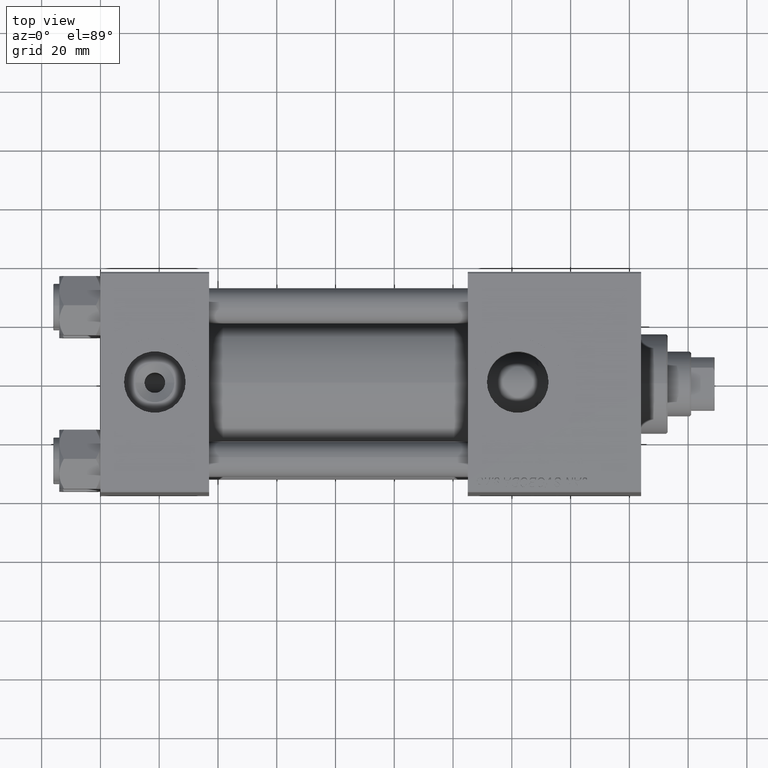
[diagram: clean part render]
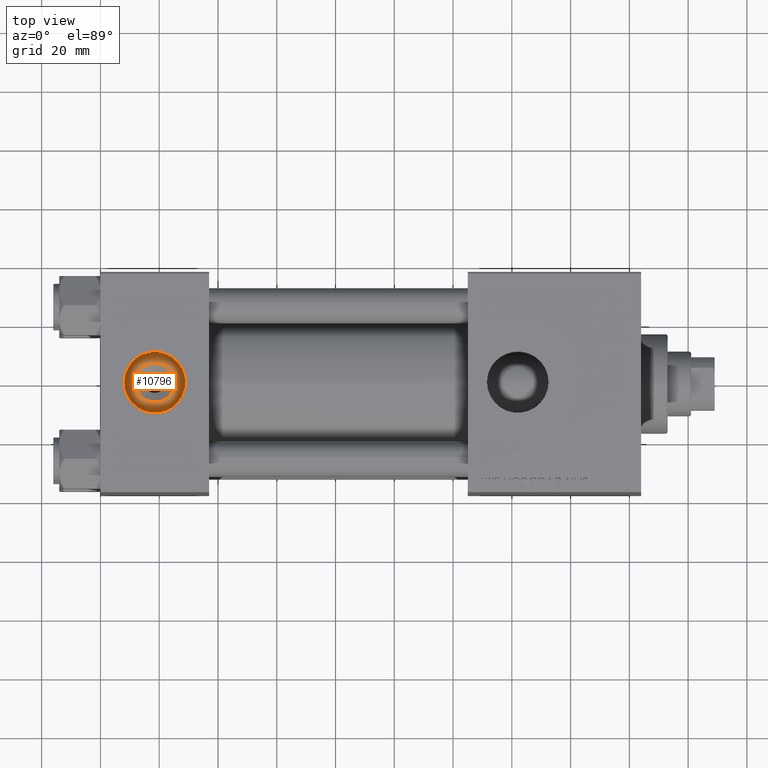
[diagram: same view with one face highlighted and labeled with its STEP entity id]
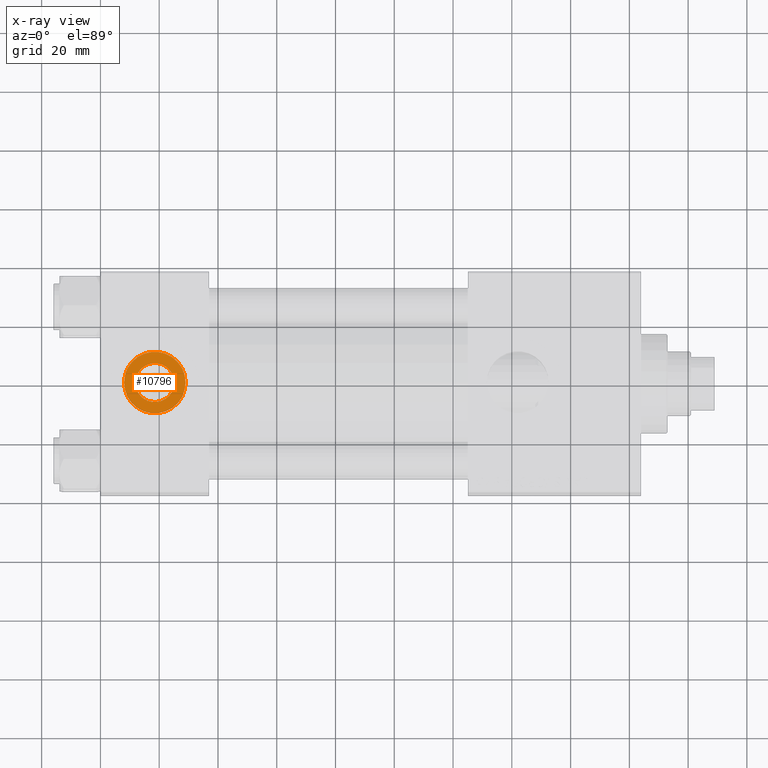
[diagram: x-ray of the same camera — body ghosted, the highlighted face saturated]
A machine part, top view. The second image highlights one B-rep face of the part: STEP entity #10796.
The next image is the same camera in x-ray: the body ghosted, the highlighted face saturated — about 0% of this face is hidden behind the body in this view.
In plain terms, the highlighted planar face has unit normal (0, 0, 1).
Its self-contained STEP definition (entity closure, byte-faithful):
#137 = ORIENTED_EDGE ( 'NONE', *, *, #48387, .T. ) ;
#658 = CARTESIAN_POINT ( 'NONE',  ( 18.50000000000000000, -5.204170427930421283E-15, 26.69999999999999929 ) ) ;
#1973 = CIRCLE ( 'NONE', #34306, 6.640000000000013891 ) ;
#1975 = AXIS2_PLACEMENT_3D ( 'NONE', #28155, #48658, #8666 ) ;
#3940 = AXIS2_PLACEMENT_3D ( 'NONE', #5898, #45883, #17846 ) ;
#5898 = CARTESIAN_POINT ( 'NONE',  ( 18.50000000000000000, -5.204170427930421283E-15, 26.69999999999999929 ) ) ;
#8194 = DIRECTION ( 'NONE',  ( 1.000000000000000000, 0.000000000000000000, 0.000000000000000000 ) ) ;
#8666 = DIRECTION ( 'NONE',  ( 1.000000000000000000, 0.000000000000000000, 0.000000000000000000 ) ) ;
#10482 = ORIENTED_EDGE ( 'NONE', *, *, #25577, .T. ) ;
#10738 = EDGE_CURVE ( 'NONE', #35630, #18472, #31293, .T. ) ;
#10796 = ADVANCED_FACE ( 'NONE', ( #38080, #14441 ), #41483, .T. ) ;
#11902 = CIRCLE ( 'NONE', #1975, 10.48000000000000043 ) ;
#14441 = FACE_OUTER_BOUND ( 'NONE', #21993, .T. ) ;
#16636 = EDGE_LOOP ( 'NONE', ( #38686, #18339 ) ) ;
#17846 = DIRECTION ( 'NONE',  ( 1.000000000000000000, 0.000000000000000000, -0.000000000000000000 ) ) ;
#17907 = CARTESIAN_POINT ( 'NONE',  ( 8.019999999999999574, -3.920740582423995006E-15, 26.69999999999999929 ) ) ;
#18339 = ORIENTED_EDGE ( 'NONE', *, *, #29803, .T. ) ;
#18472 = VERTEX_POINT ( 'NONE', #45481 ) ;
#19178 = CARTESIAN_POINT ( 'NONE',  ( 18.50000000000000000, -5.204170427930421283E-15, 26.69999999999999929 ) ) ;
#19820 = CIRCLE ( 'NONE', #50477, 10.48000000000000043 ) ;
#19867 = DIRECTION ( 'NONE',  ( 0.000000000000000000, 0.000000000000000000, 1.000000000000000000 ) ) ;
#21993 = EDGE_LOOP ( 'NONE', ( #137, #10482 ) ) ;
#25577 = EDGE_CURVE ( 'NONE', #41272, #33232, #11902, .T. ) ;
#26371 = CARTESIAN_POINT ( 'NONE',  ( 28.98000000000000043, -5.204170427930421283E-15, 26.69999999999999929 ) ) ;
#28155 = CARTESIAN_POINT ( 'NONE',  ( 18.50000000000000000, -5.204170427930421283E-15, 26.69999999999999929 ) ) ;
#29803 = EDGE_CURVE ( 'NONE', #18472, #35630, #1973, .T. ) ;
#31293 = CIRCLE ( 'NONE', #48726, 6.640000000000013891 ) ;
#31809 = CARTESIAN_POINT ( 'NONE',  ( 18.50000000000000000, -5.204170427930421283E-15, 26.69999999999999929 ) ) ;
#33232 = VERTEX_POINT ( 'NONE', #26371 ) ;
#34306 = AXIS2_PLACEMENT_3D ( 'NONE', #658, #44555, #8194 ) ;
#35630 = VERTEX_POINT ( 'NONE', #50180 ) ;
#35712 = DIRECTION ( 'NONE',  ( 1.000000000000000000, 0.000000000000000000, 0.000000000000000000 ) ) ;
#38080 = FACE_BOUND ( 'NONE', #16636, .T. ) ;
#38686 = ORIENTED_EDGE ( 'NONE', *, *, #10738, .T. ) ;
#41272 = VERTEX_POINT ( 'NONE', #17907 ) ;
#41483 = PLANE ( 'NONE',  #3940 ) ;
#44555 = DIRECTION ( 'NONE',  ( -0.000000000000000000, -0.000000000000000000, -1.000000000000000000 ) ) ;
#45481 = CARTESIAN_POINT ( 'NONE',  ( 11.85999999999998522, -4.391004953296577596E-15, 26.69999999999999929 ) ) ;
#45883 = DIRECTION ( 'NONE',  ( 0.000000000000000000, 0.000000000000000000, 1.000000000000000000 ) ) ;
#47211 = DIRECTION ( 'NONE',  ( -0.000000000000000000, -0.000000000000000000, -1.000000000000000000 ) ) ;
#48387 = EDGE_CURVE ( 'NONE', #33232, #41272, #19820, .T. ) ;
#48658 = DIRECTION ( 'NONE',  ( 0.000000000000000000, 0.000000000000000000, 1.000000000000000000 ) ) ;
#48726 = AXIS2_PLACEMENT_3D ( 'NONE', #19178, #47211, #50836 ) ;
#50180 = CARTESIAN_POINT ( 'NONE',  ( 25.14000000000001478, -5.204170427930421283E-15, 26.69999999999999929 ) ) ;
#50477 = AXIS2_PLACEMENT_3D ( 'NONE', #31809, #19867, #35712 ) ;
#50836 = DIRECTION ( 'NONE',  ( 1.000000000000000000, 0.000000000000000000, 0.000000000000000000 ) ) ;